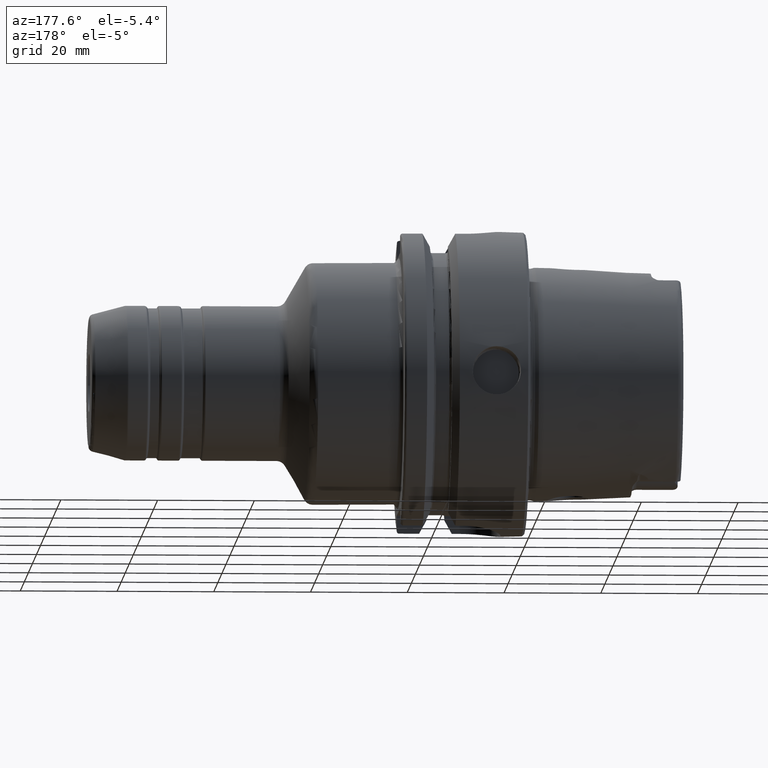
[diagram: clean part render]
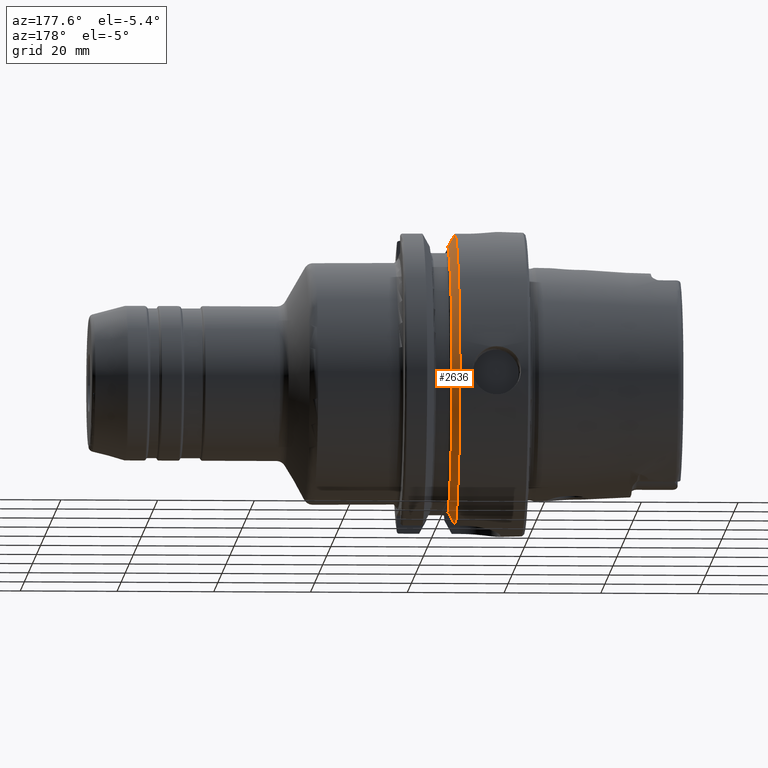
[diagram: same view with one face highlighted and labeled with its STEP entity id]
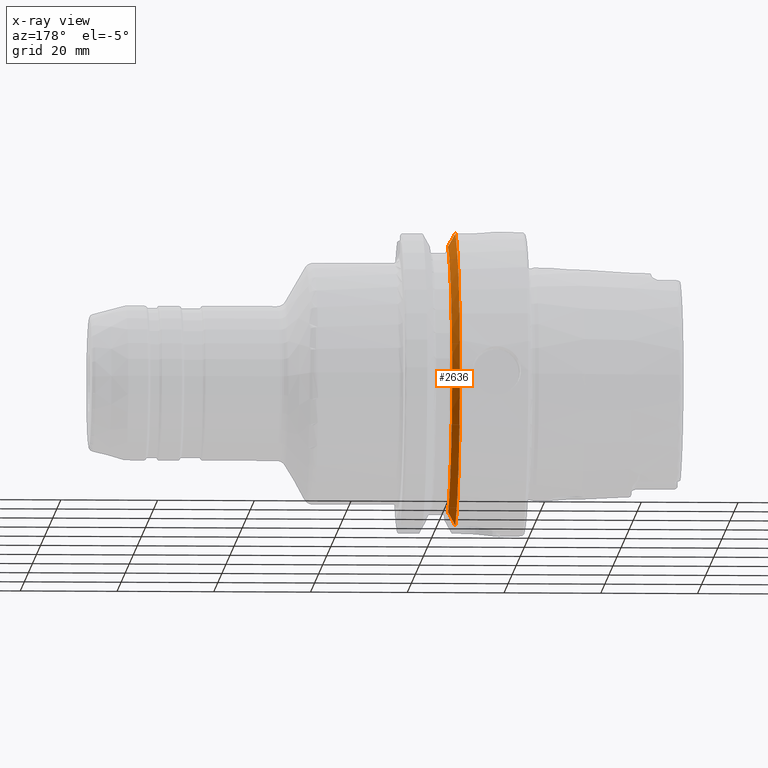
[diagram: x-ray of the same camera — body ghosted, the highlighted face saturated]
A machine part, auxiliary view. The second image highlights one B-rep face of the part: STEP entity #2636.
The next image is the same camera in x-ray: the body ghosted, the highlighted face saturated — about 0% of this face is hidden behind the body in this view.
In plain terms, the highlighted conical surface has half-angle 60 deg.
Its self-contained STEP definition (entity closure, byte-faithful):
#25=(
BOUNDED_CURVE()
B_SPLINE_CURVE(2,(#5251,#5252,#5253),.UNSPECIFIED.,.F.,.F.)
B_SPLINE_CURVE_WITH_KNOTS((3,3),(0.,0.311314369989023),.UNSPECIFIED.)
CURVE()
GEOMETRIC_REPRESENTATION_ITEM()
RATIONAL_B_SPLINE_CURVE((1.,1.00102053193168,1.))
REPRESENTATION_ITEM('')
);
#26=(
BOUNDED_CURVE()
B_SPLINE_CURVE(2,(#5280,#5281,#5282),.UNSPECIFIED.,.F.,.F.)
B_SPLINE_CURVE_WITH_KNOTS((3,3),(0.,0.308905667770379),.UNSPECIFIED.)
CURVE()
GEOMETRIC_REPRESENTATION_ITEM()
RATIONAL_B_SPLINE_CURVE((1.,1.00099999355254,1.))
REPRESENTATION_ITEM('')
);
#194=CONICAL_SURFACE('',#2958,30.1987976320958,1.0471975511966);
#282=FACE_OUTER_BOUND('',#426,.T.);
#426=EDGE_LOOP('',(#2192,#2193,#2194,#2195));
#881=CIRCLE('',#2959,31.5);
#882=CIRCLE('',#2960,28.8975952641916);
#1183=VERTEX_POINT('',#5247);
#1185=VERTEX_POINT('',#5250);
#1188=VERTEX_POINT('',#5277);
#1189=VERTEX_POINT('',#5279);
#1551=EDGE_CURVE('',#1185,#1183,#25,.T.);
#1558=EDGE_CURVE('',#1183,#1188,#881,.T.);
#1559=EDGE_CURVE('',#1188,#1189,#26,.T.);
#1560=EDGE_CURVE('',#1185,#1189,#882,.T.);
#2192=ORIENTED_EDGE('',*,*,#1551,.T.);
#2193=ORIENTED_EDGE('',*,*,#1558,.T.);
#2194=ORIENTED_EDGE('',*,*,#1559,.T.);
#2195=ORIENTED_EDGE('',*,*,#1560,.F.);
#2636=ADVANCED_FACE('',(#282),#194,.T.);
#2958=AXIS2_PLACEMENT_3D('',#5276,#3664,#3665);
#2959=AXIS2_PLACEMENT_3D('',#5278,#3666,#3667);
#2960=AXIS2_PLACEMENT_3D('',#5283,#3668,#3669);
#3664=DIRECTION('center_axis',(-1.,0.,0.));
#3665=DIRECTION('ref_axis',(0.,1.,0.));
#3666=DIRECTION('center_axis',(1.,0.,0.));
#3667=DIRECTION('ref_axis',(0.,0.,-1.));
#3668=DIRECTION('center_axis',(1.,0.,0.));
#3669=DIRECTION('ref_axis',(0.,0.,-1.));
#5247=CARTESIAN_POINT('',(14.6225009252407,9.,-30.1869176962472));
#5250=CARTESIAN_POINT('',(16.125,9.,-27.4603534582684));
#5251=CARTESIAN_POINT('Ctrl Pts',(16.125,9.,-27.4603534582684));
#5252=CARTESIAN_POINT('Ctrl Pts',(15.4092825889713,9.,-28.7648946319065));
#5253=CARTESIAN_POINT('Ctrl Pts',(14.6225009252407,9.00000000000001,-30.1869176962472));
#5276=CARTESIAN_POINT('Origin',(15.3737504626203,0.,0.));
#5277=CARTESIAN_POINT('',(14.6225009252407,8.,30.4671954731642));
#5278=CARTESIAN_POINT('Origin',(14.6225009252407,0.,0.));
#5279=CARTESIAN_POINT('',(16.125,8.,27.7681654426977));
#5280=CARTESIAN_POINT('Ctrl Pts',(14.6225009252407,8.,30.4671954731643));
#5281=CARTESIAN_POINT('Ctrl Pts',(15.4085685702068,8.,29.059532707988));
#5282=CARTESIAN_POINT('Ctrl Pts',(16.125,8.,27.7681654426977));
#5283=CARTESIAN_POINT('Origin',(16.125,0.,0.));